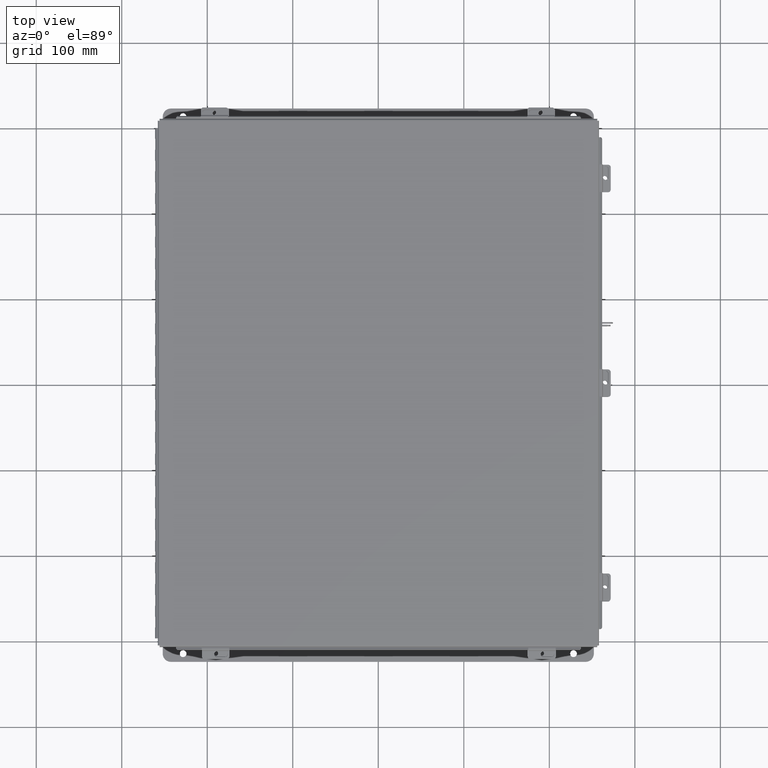
[diagram: clean part render]
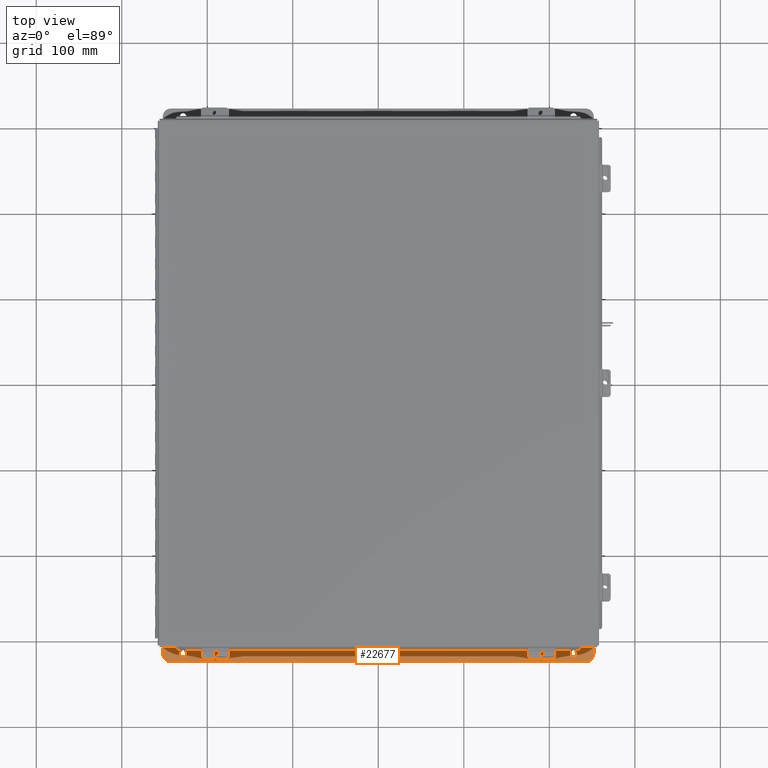
[diagram: same view with one face highlighted and labeled with its STEP entity id]
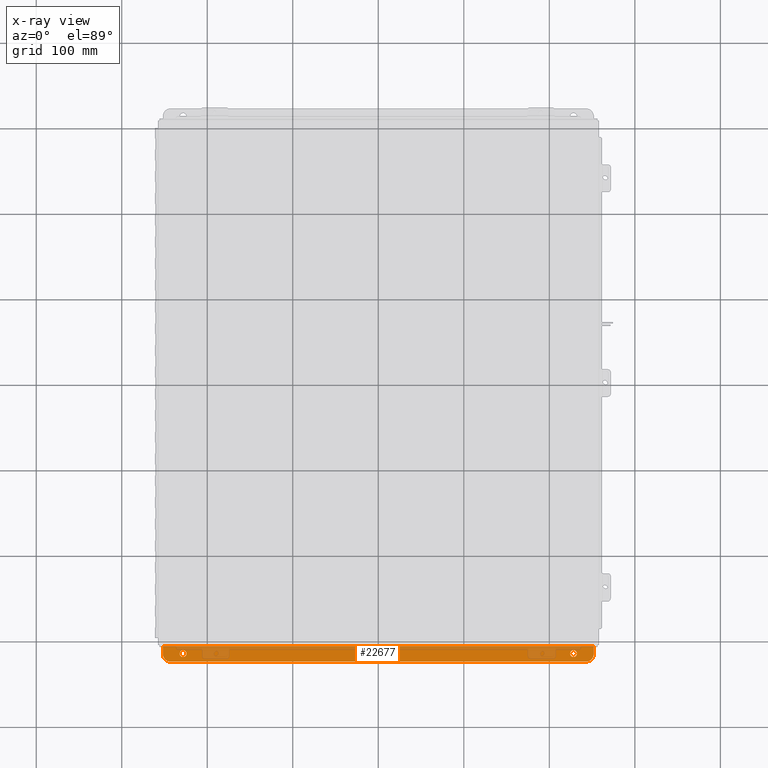
[diagram: x-ray of the same camera — body ghosted, the highlighted face saturated]
A machine part, top view. The second image highlights one B-rep face of the part: STEP entity #22677.
The next image is the same camera in x-ray: the body ghosted, the highlighted face saturated — about 32% of this face is hidden behind the body in this view.
In plain terms, the highlighted planar face has unit normal (0, -0, 1).
Its self-contained STEP definition (entity closure, byte-faithful):
#20 = EDGE_CURVE ( 'NONE', #15416, #4498, #15349, .T. ) ;
#344 = ORIENTED_EDGE ( 'NONE', *, *, #20, .T. ) ;
#354 = VECTOR ( 'NONE', #19382, 39.37007874015748100 ) ;
#623 = ORIENTED_EDGE ( 'NONE', *, *, #16462, .F. ) ;
#1311 = DIRECTION ( 'NONE',  ( 1.000000000000000000, 4.910036603141682400E-031, -0.0000000000000000000 ) ) ;
#1340 = AXIS2_PLACEMENT_3D ( 'NONE', #20452, #7171, #11948 ) ;
#1689 = DIRECTION ( 'NONE',  ( 0.0000000000000000000, -1.000000000000000000, 3.502369222646487400E-015 ) ) ;
#1761 = EDGE_CURVE ( 'NONE', #16276, #21182, #16109, .T. ) ;
#1868 = ORIENTED_EDGE ( 'NONE', *, *, #16047, .T. ) ;
#2125 = VERTEX_POINT ( 'NONE', #22319 ) ;
#2301 = DIRECTION ( 'NONE',  ( 0.0000000000000000000, -1.000000000000000000, 4.370956789862820400E-015 ) ) ;
#2332 = AXIS2_PLACEMENT_3D ( 'NONE', #16329, #18267, #4761 ) ;
#2414 = CARTESIAN_POINT ( 'NONE',  ( 9.925300000000017800, 0.3628000000000008400, -3.112300000000001200 ) ) ;
#3887 = EDGE_LOOP ( 'NONE', ( #1868, #21966 ) ) ;
#3974 = AXIS2_PLACEMENT_3D ( 'NONE', #14087, #14009, #13962 ) ;
#4498 = VERTEX_POINT ( 'NONE', #21884 ) ;
#4695 = ORIENTED_EDGE ( 'NONE', *, *, #17305, .F. ) ;
#4752 = EDGE_LOOP ( 'NONE', ( #10014, #344 ) ) ;
#4761 = DIRECTION ( 'NONE',  ( 0.0000000000000000000, -1.000000000000000000, 3.502369222646487400E-015 ) ) ;
#4810 = LINE ( 'NONE', #5640, #16463 ) ;
#5252 = VERTEX_POINT ( 'NONE', #11603 ) ;
#5484 = DIRECTION ( 'NONE',  ( 0.0000000000000000000, 3.702694488566362300E-015, 1.000000000000000000 ) ) ;
#5640 = CARTESIAN_POINT ( 'NONE',  ( -9.925299999999980500, 0.7377999999999989000, -3.112300000000003000 ) ) ;
#6236 = CIRCLE ( 'NONE', #13421, 0.1560000000000001700 ) ;
#6599 = CARTESIAN_POINT ( 'NONE',  ( -8.987799999999985800, 0.3627999999999986800, -3.112299999999996700 ) ) ;
#7171 = DIRECTION ( 'NONE',  ( -0.0000000000000000000, -3.702694488566362300E-015, -1.000000000000000000 ) ) ;
#7200 = CIRCLE ( 'NONE', #8566, 0.3750000000000000600 ) ;
#7713 = CIRCLE ( 'NONE', #1340, 0.1560000000000001700 ) ;
#7805 = VERTEX_POINT ( 'NONE', #12664 ) ;
#8171 = DIRECTION ( 'NONE',  ( 0.0000000000000000000, 3.702694488566362300E-015, 1.000000000000000000 ) ) ;
#8398 = FACE_BOUND ( 'NONE', #4752, .T. ) ;
#8566 = AXIS2_PLACEMENT_3D ( 'NONE', #12228, #5484, #12313 ) ;
#8816 = ORIENTED_EDGE ( 'NONE', *, *, #16242, .T. ) ;
#9109 = CARTESIAN_POINT ( 'NONE',  ( 9.925300000000000000, 0.01300000000000010700, -3.112299999999995800 ) ) ;
#9229 = DIRECTION ( 'NONE',  ( -0.0000000000000000000, -3.702694488566362300E-015, -1.000000000000000000 ) ) ;
#9417 = VECTOR ( 'NONE', #1311, 39.37007874015748100 ) ;
#9561 = CIRCLE ( 'NONE', #23883, 0.3750000000000000600 ) ;
#10014 = ORIENTED_EDGE ( 'NONE', *, *, #15973, .T. ) ;
#10605 = CARTESIAN_POINT ( 'NONE',  ( 8.987800000000008900, 0.5188000000000010400, -3.112300000000001600 ) ) ;
#11319 = CARTESIAN_POINT ( 'NONE',  ( -9.925299999999992900, 0.01299999999999792100, -3.112299999999999800 ) ) ;
#11541 = VERTEX_POINT ( 'NONE', #2414 ) ;
#11572 = ORIENTED_EDGE ( 'NONE', *, *, #1761, .F. ) ;
#11603 = CARTESIAN_POINT ( 'NONE',  ( 9.550300000000008900, 0.7378000000000011200, -3.112300000000003000 ) ) ;
#11948 = DIRECTION ( 'NONE',  ( 0.0000000000000000000, -1.000000000000000000, 3.502369222646487400E-015 ) ) ;
#12228 = CARTESIAN_POINT ( 'NONE',  ( 9.550300000000008900, 0.3628000000000008400, -3.112299999999996700 ) ) ;
#12313 = DIRECTION ( 'NONE',  ( 0.0000000000000000000, -1.000000000000000000, 4.370956789862820400E-015 ) ) ;
#12664 = CARTESIAN_POINT ( 'NONE',  ( -9.550299999999989400, 0.7377999999999989000, -3.112299999999998500 ) ) ;
#13294 = CARTESIAN_POINT ( 'NONE',  ( 8.987800000000008900, 0.2068000000000006800, -3.112300000000000700 ) ) ;
#13421 = AXIS2_PLACEMENT_3D ( 'NONE', #6599, #20282, #1689 ) ;
#13962 = DIRECTION ( 'NONE',  ( -4.919856193148104900E-031, -1.000000000000000000, 3.702694488566362300E-015 ) ) ;
#14009 = DIRECTION ( 'NONE',  ( 0.0000000000000000000, 3.702694488566362300E-015, 1.000000000000000000 ) ) ;
#14087 = CARTESIAN_POINT ( 'NONE',  ( -2.035385365534024800E-024, -1.092739197465705300E-014, -3.112299999999999800 ) ) ;
#14389 = PLANE ( 'NONE',  #3974 ) ;
#14470 = CARTESIAN_POINT ( 'NONE',  ( -9.550299999999989400, 0.3627999999999986800, -3.112300000000001200 ) ) ;
#14515 = LINE ( 'NONE', #21561, #9417 ) ;
#15082 = EDGE_CURVE ( 'NONE', #21857, #19437, #20582, .T. ) ;
#15335 = ORIENTED_EDGE ( 'NONE', *, *, #15816, .F. ) ;
#15349 = CIRCLE ( 'NONE', #16622, 0.1560000000000001700 ) ;
#15416 = VERTEX_POINT ( 'NONE', #19465 ) ;
#15816 = EDGE_CURVE ( 'NONE', #21182, #2125, #4810, .T. ) ;
#15973 = EDGE_CURVE ( 'NONE', #4498, #15416, #6236, .T. ) ;
#16047 = EDGE_CURVE ( 'NONE', #19437, #21857, #7713, .T. ) ;
#16109 = LINE ( 'NONE', #9109, #23772 ) ;
#16242 = EDGE_CURVE ( 'NONE', #11541, #5252, #7200, .T. ) ;
#16276 = VERTEX_POINT ( 'NONE', #18851 ) ;
#16329 = CARTESIAN_POINT ( 'NONE',  ( 8.987800000000008900, 0.3628000000000008400, -3.112300000000001200 ) ) ;
#16394 = EDGE_CURVE ( 'NONE', #7805, #2125, #9561, .T. ) ;
#16462 = EDGE_CURVE ( 'NONE', #7805, #5252, #14515, .T. ) ;
#16463 = VECTOR ( 'NONE', #16597, 39.37007874015748100 ) ;
#16595 = CARTESIAN_POINT ( 'NONE',  ( -8.987799999999985800, 0.3627999999999986800, -3.112299999999996700 ) ) ;
#16597 = DIRECTION ( 'NONE',  ( 4.919856193148104900E-031, 1.000000000000000000, -3.702694488566362300E-015 ) ) ;
#16622 = AXIS2_PLACEMENT_3D ( 'NONE', #16595, #9229, #19728 ) ;
#16977 = LINE ( 'NONE', #21151, #354 ) ;
#17305 = EDGE_CURVE ( 'NONE', #11541, #16276, #16977, .T. ) ;
#17990 = DIRECTION ( 'NONE',  ( -1.000000000000000000, -4.910036603141682400E-031, 0.0000000000000000000 ) ) ;
#18267 = DIRECTION ( 'NONE',  ( -0.0000000000000000000, -3.702694488566362300E-015, -1.000000000000000000 ) ) ;
#18851 = CARTESIAN_POINT ( 'NONE',  ( 9.925300000000000000, 0.01300000000000010700, -3.112299999999995800 ) ) ;
#19170 = EDGE_LOOP ( 'NONE', ( #623, #21604, #15335, #11572, #4695, #8816 ) ) ;
#19382 = DIRECTION ( 'NONE',  ( -4.919856193148104900E-031, -1.000000000000000000, 3.702694488566362300E-015 ) ) ;
#19437 = VERTEX_POINT ( 'NONE', #10605 ) ;
#19465 = CARTESIAN_POINT ( 'NONE',  ( -8.987799999999985800, 0.2067999999999984900, -3.112299999999996300 ) ) ;
#19728 = DIRECTION ( 'NONE',  ( 0.0000000000000000000, -1.000000000000000000, 3.502369222646487400E-015 ) ) ;
#20282 = DIRECTION ( 'NONE',  ( -0.0000000000000000000, -3.702694488566362300E-015, -1.000000000000000000 ) ) ;
#20452 = CARTESIAN_POINT ( 'NONE',  ( 8.987800000000008900, 0.3628000000000008400, -3.112300000000001200 ) ) ;
#20582 = CIRCLE ( 'NONE', #2332, 0.1560000000000001700 ) ;
#20652 = FACE_BOUND ( 'NONE', #3887, .T. ) ;
#21151 = CARTESIAN_POINT ( 'NONE',  ( 9.925300000000000000, 0.0000000000000000000, -3.112299999999995800 ) ) ;
#21182 = VERTEX_POINT ( 'NONE', #11319 ) ;
#21511 = FACE_OUTER_BOUND ( 'NONE', #19170, .T. ) ;
#21561 = CARTESIAN_POINT ( 'NONE',  ( 9.925300000000017800, 0.7378000000000011200, -3.112300000000003000 ) ) ;
#21604 = ORIENTED_EDGE ( 'NONE', *, *, #16394, .T. ) ;
#21857 = VERTEX_POINT ( 'NONE', #13294 ) ;
#21884 = CARTESIAN_POINT ( 'NONE',  ( -8.987799999999985800, 0.5187999999999988200, -3.112299999999997200 ) ) ;
#21966 = ORIENTED_EDGE ( 'NONE', *, *, #15082, .T. ) ;
#22319 = CARTESIAN_POINT ( 'NONE',  ( -9.925299999999980500, 0.3627999999999986800, -3.112299999999996700 ) ) ;
#22677 = ADVANCED_FACE ( 'NONE', ( #8398, #20652, #21511 ), #14389, .T. ) ;
#23772 = VECTOR ( 'NONE', #17990, 39.37007874015748100 ) ;
#23883 = AXIS2_PLACEMENT_3D ( 'NONE', #14470, #8171, #2301 ) ;